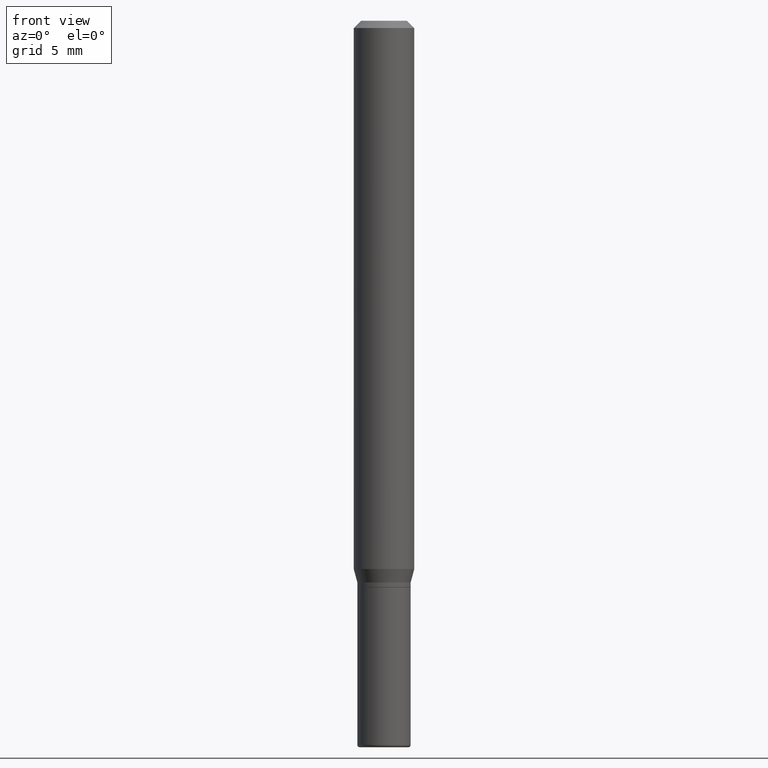
[diagram: clean part render]
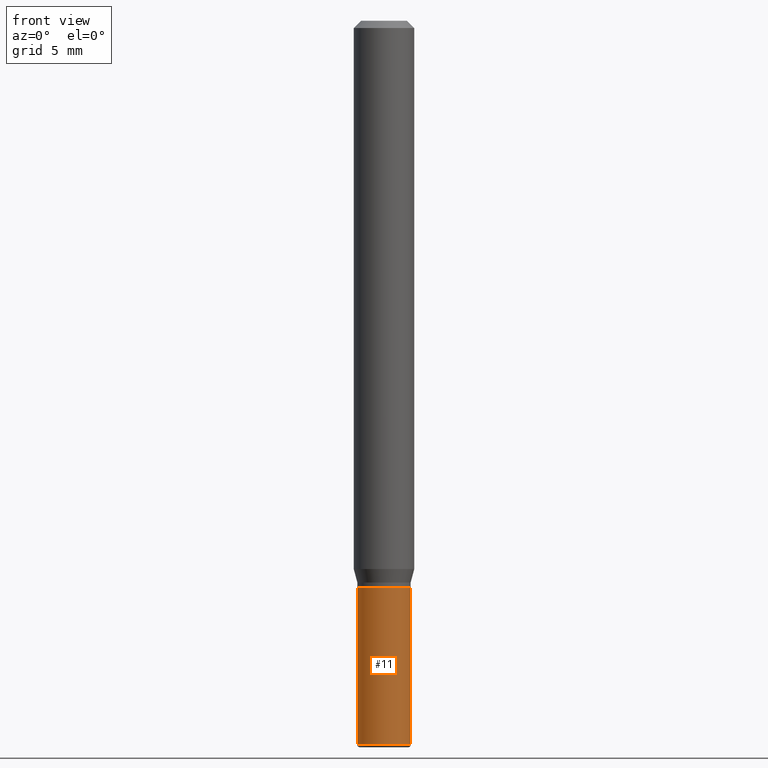
[diagram: same view with one face highlighted and labeled with its STEP entity id]
A machine part, front view. The second image highlights one B-rep face of the part: STEP entity #11.
In plain terms, the highlighted cylindrical surface (edge-blend (fillet) strip) has radius 1.397 mm, axis along (-0, 0, 1).
Its self-contained STEP definition (entity closure, byte-faithful):
#9 = AXIS2_PLACEMENT_3D ( 'NONE', #497, #303, #457 ) ;
#11 = ADVANCED_FACE ( 'NONE', ( #79 ), #166, .T. ) ;
#22 = CARTESIAN_POINT ( 'NONE',  ( -0.05500000000000018069, -4.261600379340434577E-15, -1.495000000000000107 ) ) ;
#32 = AXIS2_PLACEMENT_3D ( 'NONE', #123, #454, #310 ) ;
#35 = ORIENTED_EDGE ( 'NONE', *, *, #187, .F. ) ;
#51 = VERTEX_POINT ( 'NONE', #22 ) ;
#54 = CARTESIAN_POINT ( 'NONE',  ( 0.05500000000000018069, -5.603827548843249703E-15, -1.495000000000000107 ) ) ;
#60 = DIRECTION ( 'NONE',  ( -2.445468806185136877E-29, 3.491481338843145188E-15, 1.000000000000000000 ) ) ;
#66 = ORIENTED_EDGE ( 'NONE', *, *, #180, .F. ) ;
#79 = FACE_OUTER_BOUND ( 'NONE', #402, .T. ) ;
#90 = AXIS2_PLACEMENT_3D ( 'NONE', #505, #416, #380 ) ;
#96 = VECTOR ( 'NONE', #113, 39.37007874015748143 ) ;
#113 = DIRECTION ( 'NONE',  ( -2.445468806185136877E-29, 3.491481338843145188E-15, 1.000000000000000000 ) ) ;
#115 = EDGE_CURVE ( 'NONE', #51, #144, #482, .T. ) ;
#119 = CARTESIAN_POINT ( 'NONE',  ( 0.05500000000000009742, -3.840629472727453298E-16, 2.681897226687769380E-30 ) ) ;
#123 = CARTESIAN_POINT ( 'NONE',  ( 0.000000000000000000, 0.000000000000000000, 0.000000000000000000 ) ) ;
#144 = VERTEX_POINT ( 'NONE', #54 ) ;
#166 = CYLINDRICAL_SURFACE ( 'NONE', #32, 0.05500000000000009742 ) ;
#177 = LINE ( 'NONE', #339, #226 ) ;
#180 = EDGE_CURVE ( 'NONE', #51, #476, #177, .T. ) ;
#187 = EDGE_CURVE ( 'NONE', #476, #248, #234, .T. ) ;
#226 = VECTOR ( 'NONE', #60, 39.37007874015748143 ) ;
#234 = CIRCLE ( 'NONE', #9, 0.05500000000000000028 ) ;
#248 = VERTEX_POINT ( 'NONE', #515 ) ;
#303 = DIRECTION ( 'NONE',  ( -2.445468806185136597E-29, 3.491481338843145583E-15, 1.000000000000000000 ) ) ;
#310 = DIRECTION ( 'NONE',  ( 1.000000000000000000, -6.982962677686266711E-15, 4.876176775795935793E-29 ) ) ;
#330 = ORIENTED_EDGE ( 'NONE', *, *, #115, .T. ) ;
#339 = CARTESIAN_POINT ( 'NONE',  ( -0.05500000000000009742, 3.907985046680557945E-16, -2.705414299640202916E-30 ) ) ;
#380 = DIRECTION ( 'NONE',  ( 1.000000000000000000, -6.982962677686274599E-15, 0.000000000000000000 ) ) ;
#402 = EDGE_LOOP ( 'NONE', ( #66, #330, #420, #35 ) ) ;
#403 = CARTESIAN_POINT ( 'NONE',  ( -0.05500000000000000028, -4.261600379340436155E-15, -1.170000000000000151 ) ) ;
#416 = DIRECTION ( 'NONE',  ( -2.445468806185136597E-29, 3.491481338843145583E-15, 1.000000000000000000 ) ) ;
#420 = ORIENTED_EDGE ( 'NONE', *, *, #477, .T. ) ;
#432 = LINE ( 'NONE', #119, #96 ) ;
#454 = DIRECTION ( 'NONE',  ( -2.445468806185136597E-29, 3.491481338843145583E-15, 1.000000000000000000 ) ) ;
#457 = DIRECTION ( 'NONE',  ( 1.000000000000000000, -6.982962677686262766E-15, 0.000000000000000000 ) ) ;
#476 = VERTEX_POINT ( 'NONE', #403 ) ;
#477 = EDGE_CURVE ( 'NONE', #144, #248, #432, .T. ) ;
#482 = CIRCLE ( 'NONE', #90, 0.05500000000000018069 ) ;
#497 = CARTESIAN_POINT ( 'NONE',  ( 2.861198503236610065E-29, -4.085033166446480067E-15, -1.170000000000000151 ) ) ;
#505 = CARTESIAN_POINT ( 'NONE',  ( 3.655975865246779122E-29, -5.219764601570503141E-15, -1.495000000000000107 ) ) ;
#515 = CARTESIAN_POINT ( 'NONE',  ( 0.05500000000000000028, -4.469096113719225052E-15, -1.170000000000000151 ) ) ;